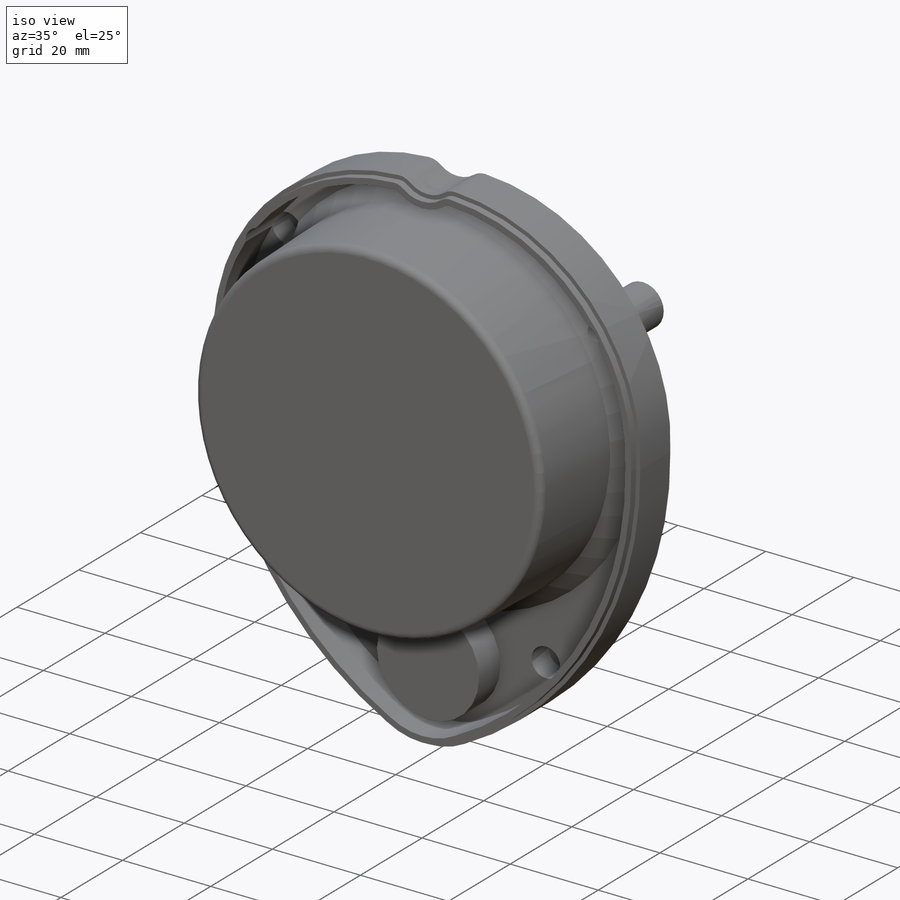
[diagram: iso view]
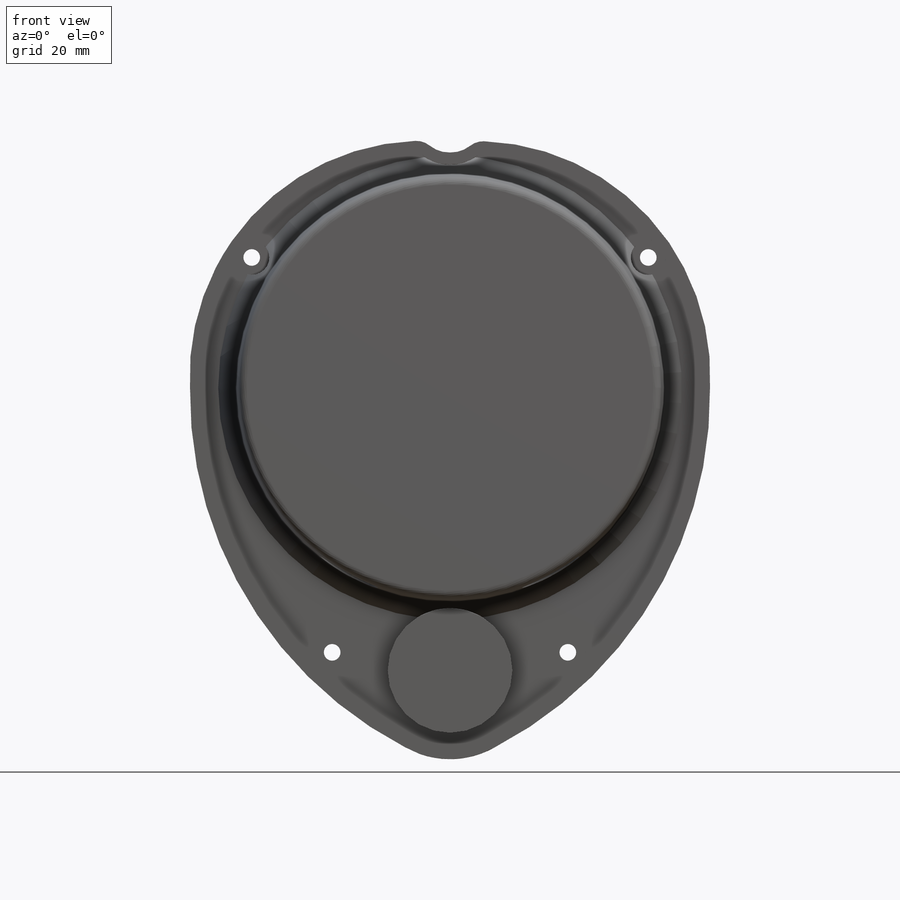
[diagram: front view]
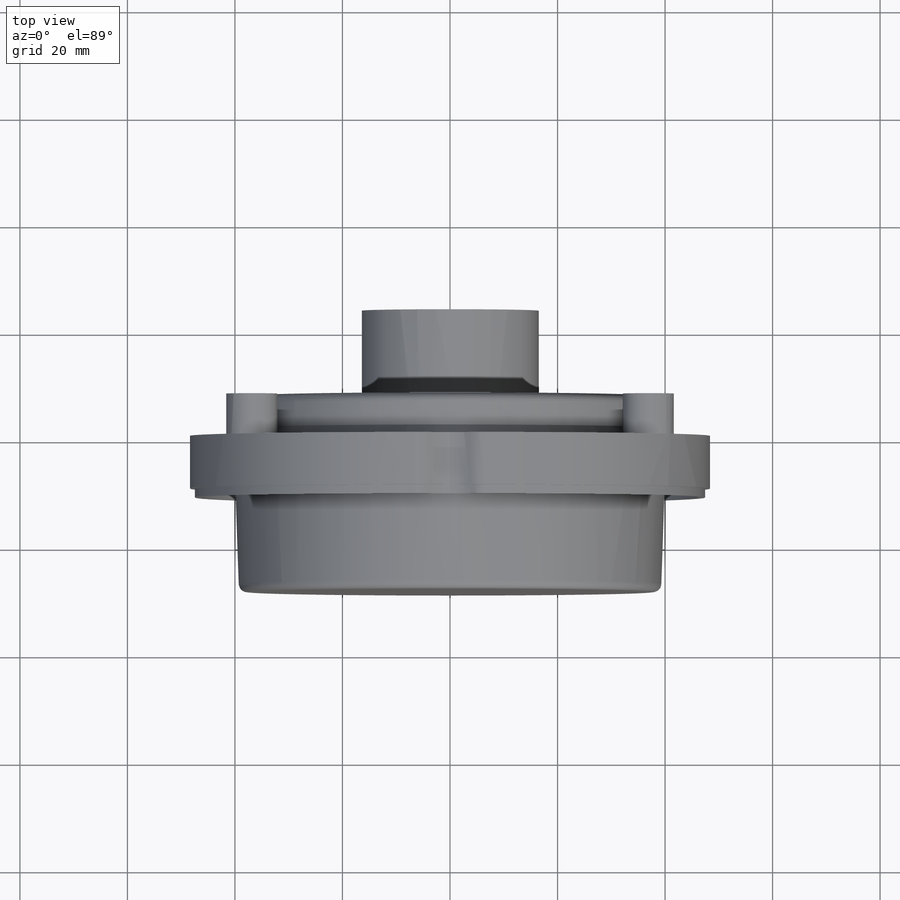
[diagram: top view]
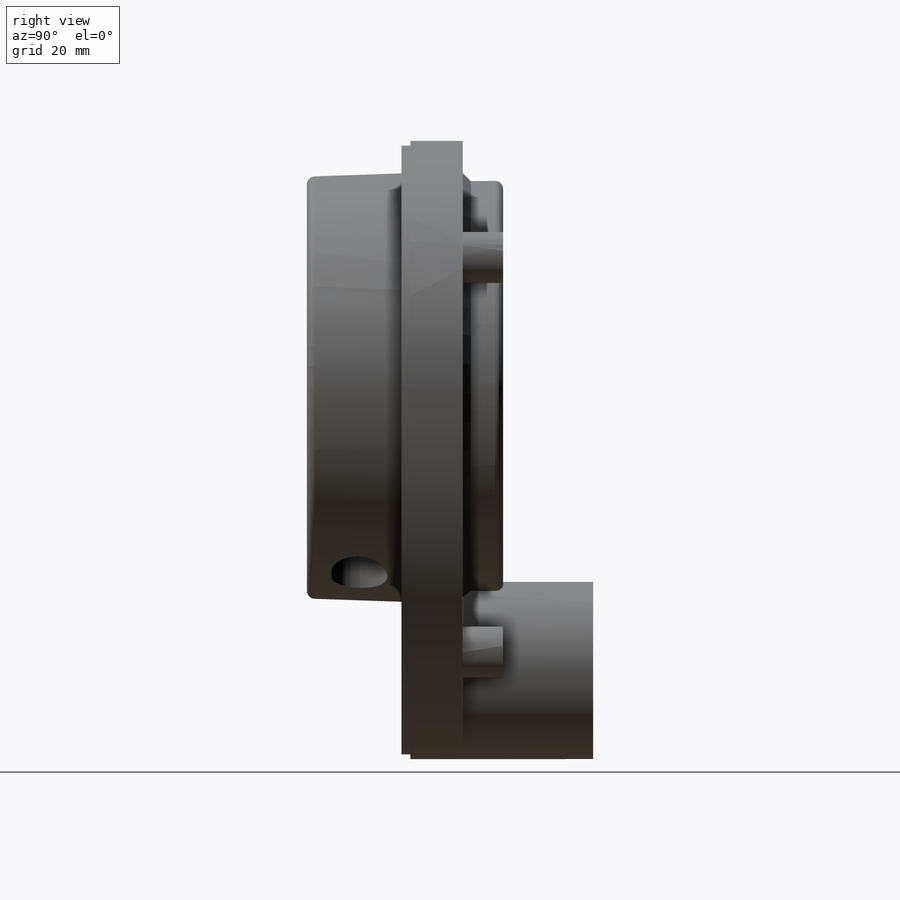
[diagram: right view]
SOLIDWORKS PART (.sldprt)
format: sldprt  version: not decoded by parser v0  size: 510,464 bytes
history: native  units: mm
features: sketch x11, extrude x6, cut_extrude x4, chamfer x3, fillet x2, material x1, shell x1, plane x1 (+11 scaffold rows collapsed)
feature tree (40):
  scaffold x11  (default folders/planes/origin — collapsed)
  material  "Material <not specified>"
  sketch  "Model"  dims[D1=4.0mm D2=73.76mm]
  sketch  "Sketch2"  dims[D1=4.0mm]
  extrude  "Boss-Extrude1"  Depth=11.4mm
  shell  "Shell1"  Thickness=2.25mm
  sketch  "Sketch5"
  extrude  "Boss-Extrude4"  Depth=29mm
  fillet  "Fillet1"  Radius=1.5mm
  chamfer  "Chamfer1"  Distance=5mm Angle=30deg
  sketch  "Sketch7"
  extrude  "Boss-Extrude5"  Depth=7.5mm
  fillet  "Fillet2"  Radius=1.5mm
  chamfer  "Chamfer2"  Distance=1.5mm Angle=45deg
  sketch  "Sketch9"
  extrude  "Boss-Extrude7"  Depth=24.25mm
  sketch  "Sketch10"
  extrude  "Boss-Extrude8"  Depth=9.5mm
  sketch  "Sketch12"
  extrude  "Boss-Extrude9"  Depth=7.5mm
  sketch  "Sketch13"  dims[D1=~2.380527mm]
  cut_extrude  "Cut-Extrude1"  Depth=1.8mm
  chamfer  "Chamfer3"  Distance=0.5mm Angle=45deg
  sketch  "Sketch14"  dims[D1=~1.101945mm]
  cut_extrude  "Cut-Extrude2"  [1 undecoded]
  sketch  "Sketch15"  dims[D1=~2.712969mm]
  cut_extrude  "Cut-Extrude3"  Depth=5.6mm
  plane  "Plane9"
  sketch  "Sketch17"  dims[D1=5.35mm]
  cut_extrude  "Cut-Extrude4"  Depth=30mm GrooveHeight=1.65mm GrooveWidth=0.9mm GrooveDraftAngle=0deg
decode coverage: 21 of 27 modeling features carry decoded parameters
note: ~ marks probable driven/reference dimensions
note: 1 parameter value undecoded
note: suppression state not decoded; provenance and decode notes live in map.json
